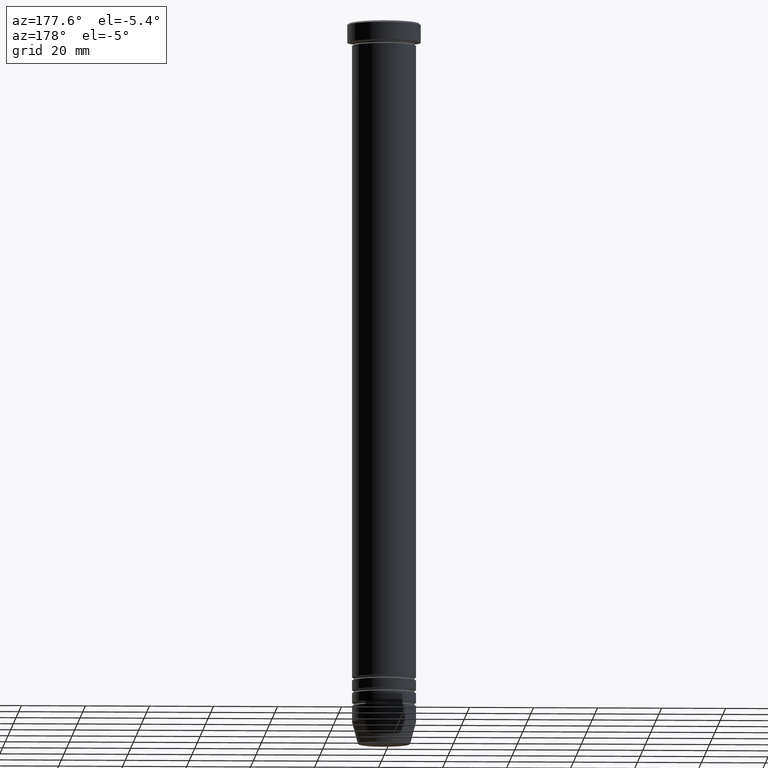
[diagram: clean part render]
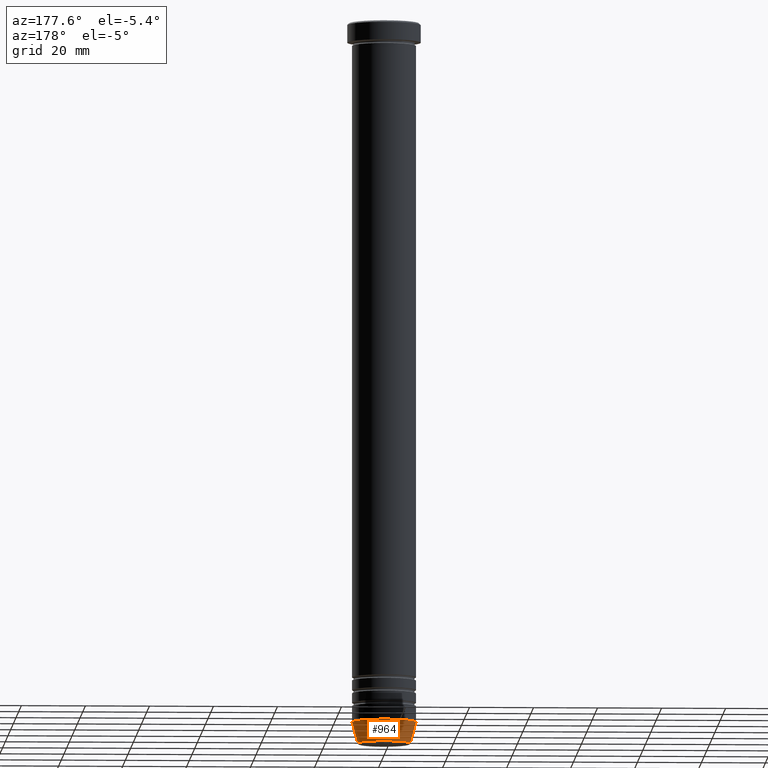
[diagram: same view with one face highlighted and labeled with its STEP entity id]
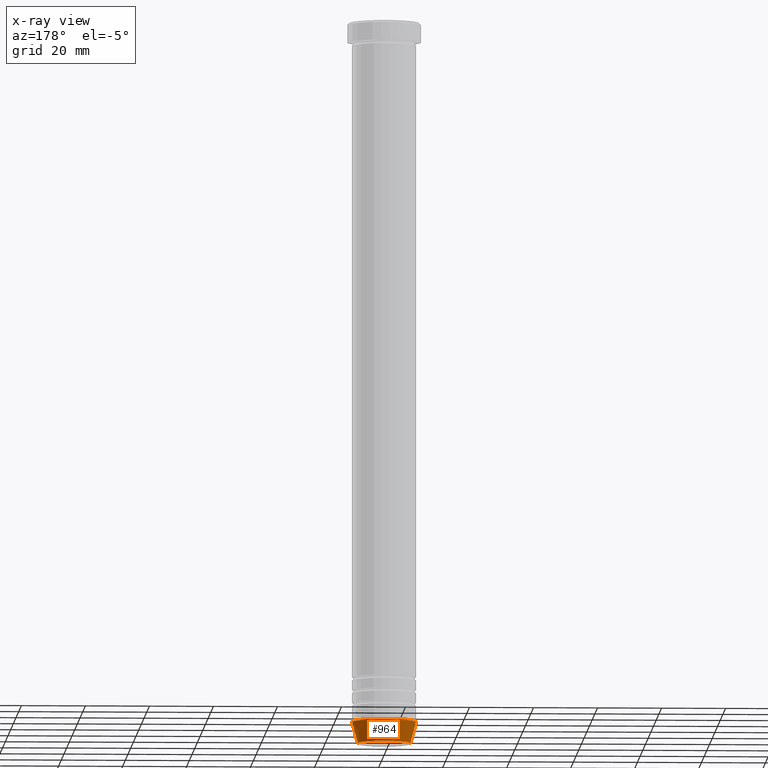
[diagram: x-ray of the same camera — body ghosted, the highlighted face saturated]
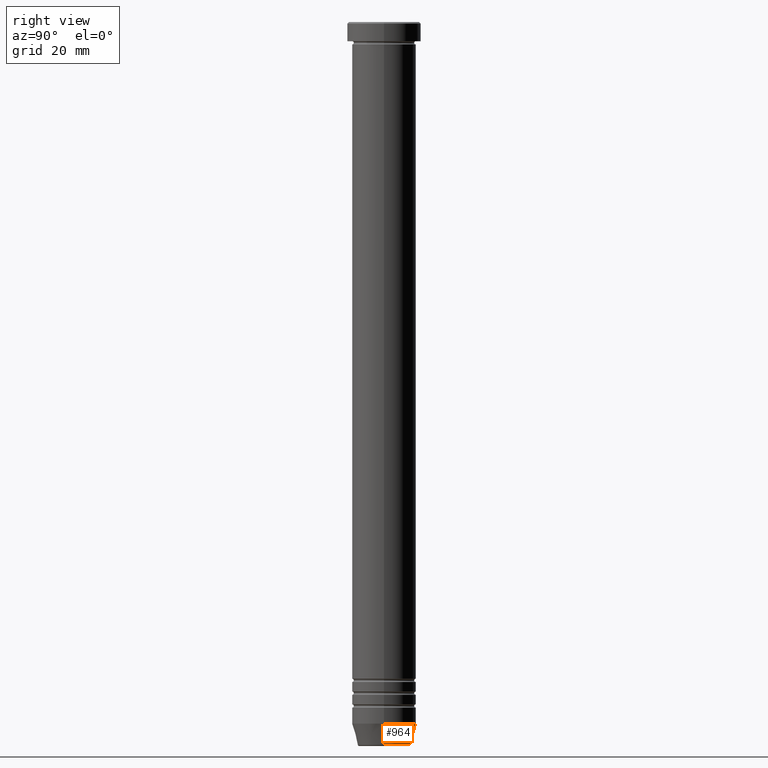
[diagram: same view with one face highlighted and labeled with its STEP entity id]
A machine part, auxiliary view. The second image highlights one B-rep face of the part: STEP entity #964.
The next image is the same camera in x-ray: the body ghosted, the highlighted face saturated — about 0% of this face is hidden behind the body in this view.
A second angle (right view) of the same face is appended — the face is thin or edge-on in the first view.
In plain terms, the highlighted conical surface has half-angle 15 deg.
Its self-contained STEP definition (entity closure, byte-faithful):
#11 = DIRECTION ( 'NONE',  ( -0.000000000000000000, -0.000000000000000000, 1.000000000000000000 ) ) ;
#53 = EDGE_CURVE ( 'NONE', #80, #975, #147, .T. ) ;
#68 = EDGE_CURVE ( 'NONE', #83, #268, #295, .T. ) ;
#70 = DIRECTION ( 'NONE',  ( 1.000000000000000000, 0.000000000000000000, 0.000000000000000000 ) ) ;
#80 = VERTEX_POINT ( 'NONE', #961 ) ;
#83 = VERTEX_POINT ( 'NONE', #264 ) ;
#85 = EDGE_CURVE ( 'NONE', #80, #83, #883, .T. ) ;
#95 = FACE_OUTER_BOUND ( 'NONE', #877, .T. ) ;
#136 = ORIENTED_EDGE ( 'NONE', *, *, #53, .T. ) ;
#145 = DIRECTION ( 'NONE',  ( -0.000000000000000000, -0.000000000000000000, 1.000000000000000000 ) ) ;
#147 = CIRCLE ( 'NONE', #181, 8.223655072137189492 ) ;
#151 = CONICAL_SURFACE ( 'NONE', #935, 8.124355652982133691, 0.2617993877991502405 ) ;
#171 = CARTESIAN_POINT ( 'NONE',  ( 0.000000000000000000, 0.000000000000000000, -225.9999999999999716 ) ) ;
#175 = ORIENTED_EDGE ( 'NONE', *, *, #68, .F. ) ;
#181 = AXIS2_PLACEMENT_3D ( 'NONE', #943, #145, #505 ) ;
#218 = ORIENTED_EDGE ( 'NONE', *, *, #858, .T. ) ;
#264 = CARTESIAN_POINT ( 'NONE',  ( 10.00000000000000000, 0.000000000000000000, -218.9999999999999716 ) ) ;
#268 = VERTEX_POINT ( 'NONE', #820 ) ;
#295 = CIRCLE ( 'NONE', #562, 10.00000000000000000 ) ;
#434 = CARTESIAN_POINT ( 'NONE',  ( 8.124355652982133691, 0.000000000000000000, -225.9999999999999716 ) ) ;
#505 = DIRECTION ( 'NONE',  ( -1.000000000000000000, 0.000000000000000000, 0.000000000000000000 ) ) ;
#534 = CARTESIAN_POINT ( 'NONE',  ( -8.223655072137189492, 1.115877042642912054E-15, -225.6294095225512137 ) ) ;
#562 = AXIS2_PLACEMENT_3D ( 'NONE', #620, #615, #70 ) ;
#615 = DIRECTION ( 'NONE',  ( -0.000000000000000000, -0.000000000000000000, 1.000000000000000000 ) ) ;
#620 = CARTESIAN_POINT ( 'NONE',  ( 0.000000000000000000, 0.000000000000000000, -218.9999999999999716 ) ) ;
#668 = LINE ( 'NONE', #1022, #879 ) ;
#697 = DIRECTION ( 'NONE',  ( 1.000000000000000000, 0.000000000000000000, 0.000000000000000000 ) ) ;
#820 = CARTESIAN_POINT ( 'NONE',  ( -10.00000000000000000, 1.224646799147353256E-15, -218.9999999999999716 ) ) ;
#854 = ORIENTED_EDGE ( 'NONE', *, *, #85, .F. ) ;
#858 = EDGE_CURVE ( 'NONE', #975, #268, #668, .T. ) ;
#877 = EDGE_LOOP ( 'NONE', ( #136, #218, #175, #854 ) ) ;
#879 = VECTOR ( 'NONE', #1030, 1000.000000000000114 ) ;
#883 = LINE ( 'NONE', #434, #1059 ) ;
#887 = DIRECTION ( 'NONE',  ( 0.2588190451025214611, 0.000000000000000000, 0.9659258262890679791 ) ) ;
#935 = AXIS2_PLACEMENT_3D ( 'NONE', #171, #11, #697 ) ;
#943 = CARTESIAN_POINT ( 'NONE',  ( 0.000000000000000000, 0.000000000000000000, -225.6294095225512137 ) ) ;
#961 = CARTESIAN_POINT ( 'NONE',  ( 8.223655072137189492, 0.000000000000000000, -225.6294095225512137 ) ) ;
#964 = ADVANCED_FACE ( 'NONE', ( #95 ), #151, .T. ) ;
#975 = VERTEX_POINT ( 'NONE', #534 ) ;
#1022 = CARTESIAN_POINT ( 'NONE',  ( -8.124355652982133691, 9.949466145559274611E-16, -225.9999999999999716 ) ) ;
#1030 = DIRECTION ( 'NONE',  ( -0.2588190451025214611, 3.169619151431774186E-17, 0.9659258262890679791 ) ) ;
#1059 = VECTOR ( 'NONE', #887, 1000.000000000000114 ) ;